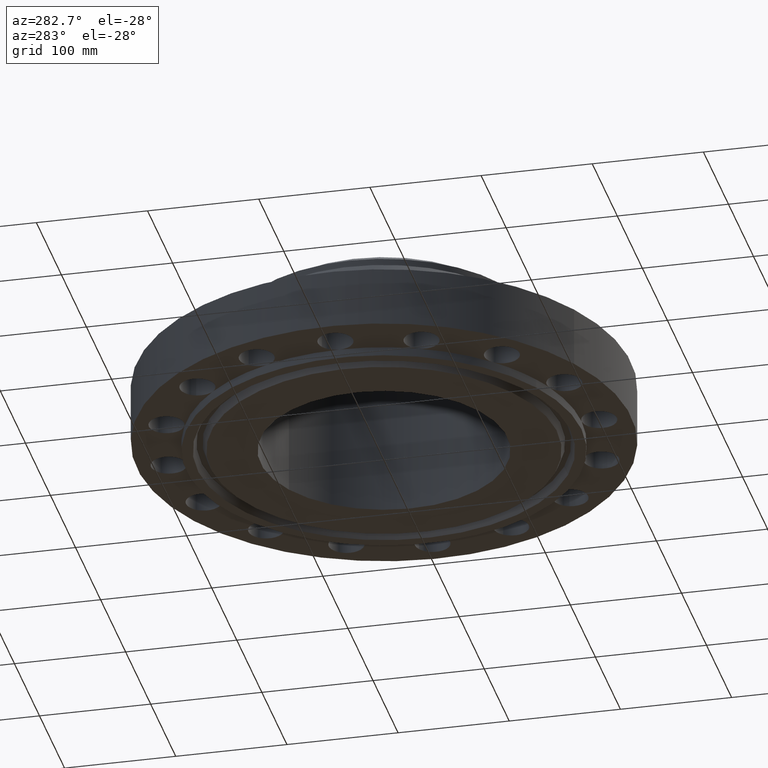
[diagram: clean part render]
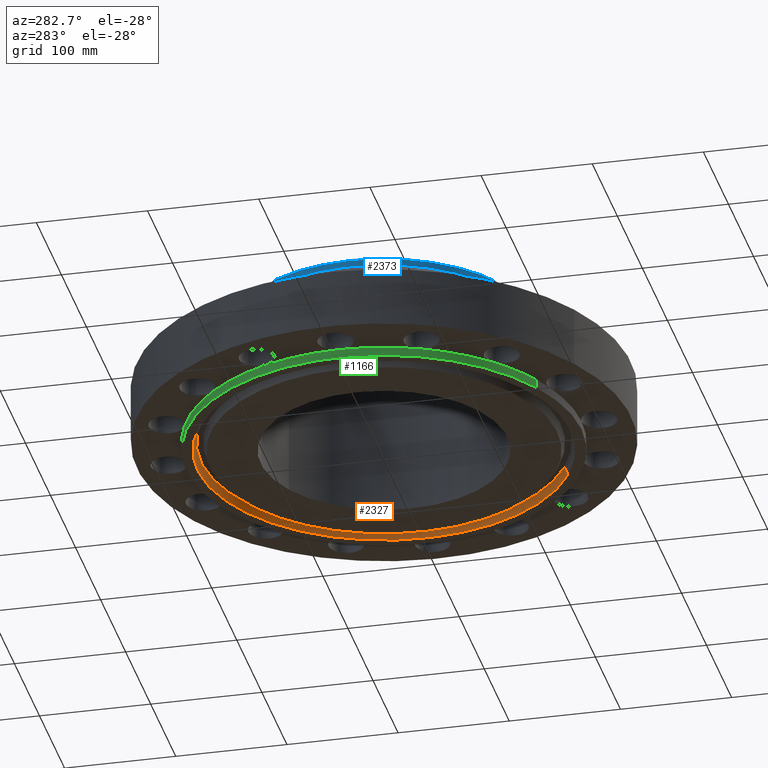
[diagram: same view with three faces highlighted in distinct colors, each labeled with its STEP entity id]
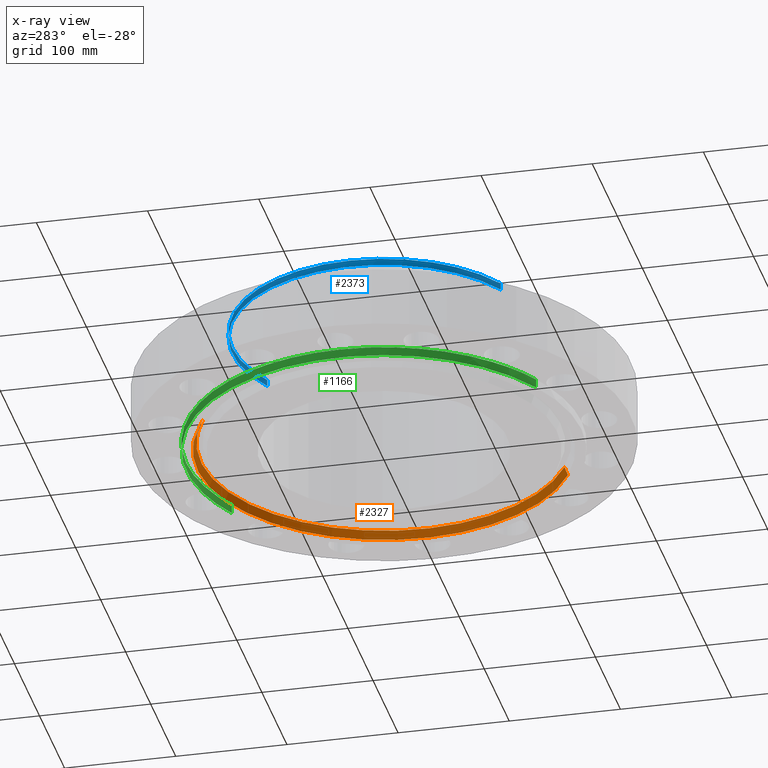
[diagram: x-ray of the same camera — body ghosted, the three highlighted faces saturated]
A machine part, auxiliary view with three faces highlighted in distinct colors.
The next image is the same camera in x-ray (body ghosted, the three faces saturated) — at least one of them is partly hidden behind the body in this view.
Their STEP definitions:

[orange] entity #2327 — the highlighted conical surface has half-angle 23 deg.
#2017=AXIS2_PLACEMENT_3D('Circle Axis2P3D',#2015,#2016,$) ;
#2314=AXIS2_PLACEMENT_3D('Cone Axis2P3D',#2311,#2312,#2313) ;
#2318=AXIS2_PLACEMENT_3D('Circle Axis2P3D',#2316,#2317,$) ;
#2010=CARTESIAN_POINT('Vertex',(3.1687630974,-5.80038194286,-0.313000000001)) ;
#2012=CARTESIAN_POINT('Vertex',(-3.1687630974,5.80038194283,-0.313000000001)) ;
#2015=CARTESIAN_POINT('Axis2P3D Location',(-1.28118688012E-011,-2.36649894781E-011,-0.313000000001)) ;
#2278=CARTESIAN_POINT('Line Origine',(-3.13883653562,5.74560173891,-0.165943667508)) ;
#2282=CARTESIAN_POINT('Vertex',(-3.10890997383,5.69082153499,-0.0188873350136)) ;
#2289=CARTESIAN_POINT('Vertex',(3.10890997382,-5.690821535,-0.0188873350143)) ;
#2292=CARTESIAN_POINT('Line Origine',(3.13883653562,-5.74560173891,-0.165943667508)) ;
#2311=CARTESIAN_POINT('Axis2P3D Location',(0.,0.,-0.0188873350169)) ;
#2316=CARTESIAN_POINT('Axis2P3D Location',(0.,0.,-0.0188873350169)) ;
#2016=DIRECTION('Axis2P3D Direction',(0.,0.,-0.0393700787402)) ;
#2279=DIRECTION('Vector Direction',(-0.00737505833566,0.0134999537303,-0.0362403485611)) ;
#2293=DIRECTION('Vector Direction',(0.00737505833566,-0.0134999537303,-0.0362403485611)) ;
#2312=DIRECTION('Axis2P3D Direction',(-0.,-0.,-0.0393700787402)) ;
#2313=DIRECTION('Axis2P3D XDirection',(-0.0188750212049,0.0345504945626,0.)) ;
#2317=DIRECTION('Axis2P3D Direction',(-0.,0.,-0.0393700787402)) ;
#2280=VECTOR('Line Direction',#2279,0.0393700787402) ;
#2294=VECTOR('Line Direction',#2293,0.0393700787402) ;
#2322=ORIENTED_EDGE('',*,*,#2019,.T.) ;
#2323=ORIENTED_EDGE('',*,*,#2296,.T.) ;
#2324=ORIENTED_EDGE('',*,*,#2320,.T.) ;
#2325=ORIENTED_EDGE('',*,*,#2284,.F.) ;
#2327=ADVANCED_FACE('PartBody',(#2326),#2315,.F.) ;
#2018=CIRCLE('generated circle',#2017,6.60950000003) ;
#2319=CIRCLE('generated circle',#2318,6.48465658061) ;
#2315=CONICAL_SURFACE('Cone',#2314,6.48465658061,0.401425727959) ;
#2019=EDGE_CURVE('',#2013,#2011,#2018,.T.) ;
#2284=EDGE_CURVE('',#2013,#2283,#2281,.F.) ;
#2296=EDGE_CURVE('',#2011,#2290,#2295,.F.) ;
#2320=EDGE_CURVE('',#2290,#2283,#2319,.F.) ;
#2321=EDGE_LOOP('',(#2322,#2323,#2324,#2325)) ;
#2326=FACE_OUTER_BOUND('',#2321,.T.) ;
#2281=LINE('Line',#2278,#2280) ;
#2295=LINE('Line',#2292,#2294) ;
#2011=VERTEX_POINT('',#2010) ;
#2013=VERTEX_POINT('',#2012) ;
#2283=VERTEX_POINT('',#2282) ;
#2290=VERTEX_POINT('',#2289) ;

[blue] entity #2373 — the highlighted cylindrical surface (partial cylindrical patch) has radius 136.525 mm, axis along (-0, 0, -1).
#2046=AXIS2_PLACEMENT_3D('Circle Axis2P3D',#2044,#2045,$) ;
#2338=AXIS2_PLACEMENT_3D('Cylinder Axis2P3D',#2335,#2336,#2337) ;
#2356=AXIS2_PLACEMENT_3D('Circle Axis2P3D',#2354,#2355,$) ;
#2363=AXIS2_PLACEMENT_3D('Circle Axis2P3D',#2361,#2362,$) ;
#2041=CARTESIAN_POINT('Vertex',(-2.57691227001,-4.71700627018,4.08578537513)) ;
#2044=CARTESIAN_POINT('Axis2P3D Location',(0.,0.,4.08578537513)) ;
#2048=CARTESIAN_POINT('Vertex',(2.57691227001,4.71700627018,4.08578537513)) ;
#2335=CARTESIAN_POINT('Axis2P3D Location',(0.,0.,2.28350000001)) ;
#2340=CARTESIAN_POINT('Line Origine',(2.57691227001,4.71700627018,4.20389561136)) ;
#2344=CARTESIAN_POINT('Vertex',(2.57691227001,4.71700627018,4.32200584758)) ;
#2347=CARTESIAN_POINT('Line Origine',(-2.57691227001,-4.71700627018,4.20389561136)) ;
#2351=CARTESIAN_POINT('Vertex',(-2.57691227001,-4.71700627018,4.32200584758)) ;
#2354=CARTESIAN_POINT('Axis2P3D Location',(0.,0.,4.32200584758)) ;
#2358=CARTESIAN_POINT('Vertex',(-2.57691227001,4.71700627018,4.32200584758)) ;
#2361=CARTESIAN_POINT('Axis2P3D Location',(0.,0.,4.32200584758)) ;
#2045=DIRECTION('Axis2P3D Direction',(-0.,0.,-0.0393700787402)) ;
#2336=DIRECTION('Axis2P3D Direction',(-0.,0.,-0.0393700787402)) ;
#2337=DIRECTION('Axis2P3D XDirection',(-0.0188750212049,-0.0345504945626,0.)) ;
#2341=DIRECTION('Vector Direction',(0.,0.,-0.0393700787402)) ;
#2348=DIRECTION('Vector Direction',(0.,0.,-0.0393700787402)) ;
#2355=DIRECTION('Axis2P3D Direction',(-0.,0.,-0.0393700787402)) ;
#2362=DIRECTION('Axis2P3D Direction',(-0.,0.,-0.0393700787402)) ;
#2342=VECTOR('Line Direction',#2341,0.0393700787402) ;
#2349=VECTOR('Line Direction',#2348,0.0393700787402) ;
#2367=ORIENTED_EDGE('',*,*,#2346,.F.) ;
#2368=ORIENTED_EDGE('',*,*,#2050,.F.) ;
#2369=ORIENTED_EDGE('',*,*,#2353,.T.) ;
#2370=ORIENTED_EDGE('',*,*,#2360,.F.) ;
#2371=ORIENTED_EDGE('',*,*,#2365,.T.) ;
#2373=ADVANCED_FACE('PartBody',(#2372),#2339,.T.) ;
#2047=CIRCLE('generated circle',#2046,5.37500000002) ;
#2357=CIRCLE('generated circle',#2356,5.37500000002) ;
#2364=CIRCLE('generated circle',#2363,5.37500000002) ;
#2339=CYLINDRICAL_SURFACE('generated cylinder',#2338,5.37500000002) ;
#2050=EDGE_CURVE('',#2042,#2049,#2047,.T.) ;
#2346=EDGE_CURVE('',#2049,#2345,#2343,.F.) ;
#2353=EDGE_CURVE('',#2042,#2352,#2350,.F.) ;
#2360=EDGE_CURVE('',#2359,#2352,#2357,.F.) ;
#2365=EDGE_CURVE('',#2359,#2345,#2364,.T.) ;
#2366=EDGE_LOOP('',(#2367,#2368,#2369,#2370,#2371)) ;
#2372=FACE_OUTER_BOUND('',#2366,.T.) ;
#2343=LINE('Line',#2340,#2342) ;
#2350=LINE('Line',#2347,#2349) ;
#2042=VERTEX_POINT('',#2041) ;
#2049=VERTEX_POINT('',#2048) ;
#2345=VERTEX_POINT('',#2344) ;
#2352=VERTEX_POINT('',#2351) ;
#2359=VERTEX_POINT('',#2358) ;

[green] entity #1166 — the highlighted cylindrical surface (partial cylindrical patch) has radius 177.8 mm, axis along (0, 0, -1).
#191=AXIS2_PLACEMENT_3D('Circle Axis2P3D',#189,#190,$) ;
#217=AXIS2_PLACEMENT_3D('Circle Axis2P3D',#215,#216,$) ;
#222=AXIS2_PLACEMENT_3D('Circle Axis2P3D',#220,#221,$) ;
#248=AXIS2_PLACEMENT_3D('Circle Axis2P3D',#246,#247,$) ;
#274=AXIS2_PLACEMENT_3D('Circle Axis2P3D',#272,#273,$) ;
#300=AXIS2_PLACEMENT_3D('Circle Axis2P3D',#298,#299,$) ;
#326=AXIS2_PLACEMENT_3D('Circle Axis2P3D',#324,#325,$) ;
#352=AXIS2_PLACEMENT_3D('Circle Axis2P3D',#350,#351,$) ;
#378=AXIS2_PLACEMENT_3D('Circle Axis2P3D',#376,#377,$) ;
#1133=AXIS2_PLACEMENT_3D('Cylinder Axis2P3D',#1130,#1131,#1132) ;
#92=CARTESIAN_POINT('Vertex',(-1.71542746534E-016,7.00000000003,0.)) ;
#186=CARTESIAN_POINT('Vertex',(3.35597877024,6.14307793326,-3.14177380524E-012)) ;
#189=CARTESIAN_POINT('Axis2P3D Location',(-3.58732997813E-009,-7.85138197676E-009,0.)) ;
#193=CARTESIAN_POINT('Vertex',(2.67878402657,6.4671567276,-3.14177380524E-012)) ;
#215=CARTESIAN_POINT('Axis2P3D Location',(2.34735205901E-010,1.32776491464E-009,0.)) ;
#220=CARTESIAN_POINT('Axis2P3D Location',(-2.34733947066E-010,1.32775820085E-009,0.)) ;
#224=CARTESIAN_POINT('Vertex',(-2.67878402657,6.4671567276,-3.14177380524E-012)) ;
#246=CARTESIAN_POINT('Axis2P3D Location',(-1.09747130019E-009,1.71139644888E-009,0.)) ;
#250=CARTESIAN_POINT('Vertex',(-4.94974746833,4.94974746833,-3.14177380524E-012)) ;
#272=CARTESIAN_POINT('Axis2P3D Location',(-1.71072171302E-009,1.09813540588E-009,0.)) ;
#276=CARTESIAN_POINT('Vertex',(-6.4671567276,2.67878402657,-3.14177380524E-012)) ;
#298=CARTESIAN_POINT('Axis2P3D Location',(-1.32709689257E-009,2.3540336784E-010,0.)) ;
#302=CARTESIAN_POINT('Vertex',(-7.00000000003,-2.23792987641E-014,-3.14177380524E-012)) ;
#324=CARTESIAN_POINT('Axis2P3D Location',(-1.32709017878E-009,-2.34066204739E-010,0.)) ;
#328=CARTESIAN_POINT('Vertex',(-6.4671567276,-2.67878402657,-3.14177380524E-012)) ;
#350=CARTESIAN_POINT('Axis2P3D Location',(-1.71072842681E-009,-1.0968038376E-009,0.)) ;
#354=CARTESIAN_POINT('Vertex',(-4.94974746831,-4.94974746831,0.)) ;
#376=CARTESIAN_POINT('Axis2P3D Location',(-5.2014301877E-010,-8.77468806277E-010,0.)) ;
#380=CARTESIAN_POINT('Vertex',(-3.35597877025,-6.14307793326,-3.14177380524E-012)) ;
#1093=CARTESIAN_POINT('Vertex',(3.35597877025,6.14307793326,-0.313000000034)) ;
#1095=CARTESIAN_POINT('Vertex',(-3.35597877024,-6.14307793325,-0.313000000001)) ;
#1098=CARTESIAN_POINT('Line Origine',(3.35597877025,6.14307793326,-0.156500000018)) ;
#1103=CARTESIAN_POINT('Line Origine',(-3.35597877025,-6.14307793326,-0.156500000018)) ;
#1130=CARTESIAN_POINT('Axis2P3D Location',(0.,0.,2.28350000001)) ;
#1136=CARTESIAN_POINT('Control Point',(-3.35597877025,-6.14307793326,-0.313000000001)) ;
#1137=CARTESIAN_POINT('Control Point',(-4.32093119552,-5.61592202075,-0.313000000003)) ;
#1138=CARTESIAN_POINT('Control Point',(-5.18237679942,-4.89929814259,-0.313000000004)) ;
#1139=CARTESIAN_POINT('Control Point',(-5.89054518539,-4.02015285781,-0.313000000006)) ;
#1140=CARTESIAN_POINT('Control Point',(-6.92401186854,-2.03156042604,-0.313000000009)) ;
#1141=CARTESIAN_POINT('Control Point',(-7.12882071722,0.200166837853,-0.313000000012)) ;
#1142=CARTESIAN_POINT('Control Point',(-7.00792179263,1.32256709831,-0.313000000014)) ;
#1143=CARTESIAN_POINT('Control Point',(-6.3325458989,3.45948559162,-0.313000000017)) ;
#1144=CARTESIAN_POINT('Control Point',(-4.89929814259,5.18237679942,-0.313000000021)) ;
#1145=CARTESIAN_POINT('Control Point',(-4.02015285781,5.89054518539,-0.313000000022)) ;
#1146=CARTESIAN_POINT('Control Point',(-2.03156042604,6.92401186854,-0.313000000026)) ;
#1147=CARTESIAN_POINT('Control Point',(0.200166837849,7.12882071722,-0.313000000029)) ;
#1148=CARTESIAN_POINT('Control Point',(1.32256709831,7.00792179263,-0.31300000003)) ;
#1149=CARTESIAN_POINT('Control Point',(2.39102634496,6.67023384577,-0.313000000032)) ;
#1150=CARTESIAN_POINT('Control Point',(3.35597877024,6.14307793326,-0.313000000034)) ;
#190=DIRECTION('Axis2P3D Direction',(0.,0.,-0.0393700787402)) ;
#216=DIRECTION('Axis2P3D Direction',(0.,0.,-0.0393700787402)) ;
#221=DIRECTION('Axis2P3D Direction',(0.,0.,-0.0393700787402)) ;
#247=DIRECTION('Axis2P3D Direction',(0.,0.,-0.0393700787402)) ;
#273=DIRECTION('Axis2P3D Direction',(0.,0.,-0.0393700787402)) ;
#299=DIRECTION('Axis2P3D Direction',(0.,0.,-0.0393700787402)) ;
#325=DIRECTION('Axis2P3D Direction',(0.,0.,-0.0393700787402)) ;
#351=DIRECTION('Axis2P3D Direction',(0.,0.,-0.0393700787402)) ;
#377=DIRECTION('Axis2P3D Direction',(0.,0.,-0.0393700787402)) ;
#1099=DIRECTION('Vector Direction',(0.,0.,-0.0393700787402)) ;
#1104=DIRECTION('Vector Direction',(0.,0.,-0.0393700787402)) ;
#1131=DIRECTION('Axis2P3D Direction',(0.,0.,-0.0393700787402)) ;
#1132=DIRECTION('Axis2P3D XDirection',(-0.0188750212049,-0.0345504945626,0.)) ;
#1100=VECTOR('Line Direction',#1099,0.0393700787402) ;
#1105=VECTOR('Line Direction',#1104,0.0393700787402) ;
#1153=ORIENTED_EDGE('',*,*,#1151,.F.) ;
#1154=ORIENTED_EDGE('',*,*,#1107,.T.) ;
#1155=ORIENTED_EDGE('',*,*,#382,.T.) ;
#1156=ORIENTED_EDGE('',*,*,#356,.T.) ;
#1157=ORIENTED_EDGE('',*,*,#330,.T.) ;
#1158=ORIENTED_EDGE('',*,*,#304,.T.) ;
#1159=ORIENTED_EDGE('',*,*,#278,.T.) ;
#1160=ORIENTED_EDGE('',*,*,#252,.T.) ;
#1161=ORIENTED_EDGE('',*,*,#226,.T.) ;
#1162=ORIENTED_EDGE('',*,*,#219,.T.) ;
#1163=ORIENTED_EDGE('',*,*,#195,.T.) ;
#1164=ORIENTED_EDGE('',*,*,#1102,.F.) ;
#1166=ADVANCED_FACE('PartBody',(#1165),#1134,.T.) ;
#1135=B_SPLINE_CURVE_WITH_KNOTS('',5,(#1136,#1137,#1138,#1139,#1140,#1141,#1142,#1143,#1144,#1145,#1146,#1147,#1148,#1149,#1150),.UNSPECIFIED.,.F.,.U.,(6,3,3,3,6),(-279.287586905,-139.643793453,2.84217094304E-014,139.643793453,279.287586905),.UNSPECIFIED.) ;
#192=CIRCLE('generated circle',#191,7.00000000865) ;
#218=CIRCLE('generated circle',#217,6.9999999987) ;
#223=CIRCLE('generated circle',#222,6.9999999987) ;
#249=CIRCLE('generated circle',#248,6.99999999802) ;
#275=CIRCLE('generated circle',#274,6.99999999802) ;
#301=CIRCLE('generated circle',#300,6.9999999987) ;
#327=CIRCLE('generated circle',#326,6.9999999987) ;
#353=CIRCLE('generated circle',#352,6.99999999802) ;
#379=CIRCLE('generated circle',#378,6.99999999901) ;
#1134=CYLINDRICAL_SURFACE('generated cylinder',#1133,7.00000000003) ;
#195=EDGE_CURVE('',#194,#187,#192,.T.) ;
#219=EDGE_CURVE('',#93,#194,#218,.T.) ;
#226=EDGE_CURVE('',#225,#93,#223,.T.) ;
#252=EDGE_CURVE('',#251,#225,#249,.T.) ;
#278=EDGE_CURVE('',#277,#251,#275,.T.) ;
#304=EDGE_CURVE('',#303,#277,#301,.T.) ;
#330=EDGE_CURVE('',#329,#303,#327,.T.) ;
#356=EDGE_CURVE('',#355,#329,#353,.T.) ;
#382=EDGE_CURVE('',#381,#355,#379,.T.) ;
#1102=EDGE_CURVE('',#1094,#187,#1101,.F.) ;
#1107=EDGE_CURVE('',#1096,#381,#1106,.F.) ;
#1151=EDGE_CURVE('',#1096,#1094,#1135,.T.) ;
#1152=EDGE_LOOP('',(#1153,#1154,#1155,#1156,#1157,#1158,#1159,#1160,#1161,#1162,#1163,#1164)) ;
#1165=FACE_OUTER_BOUND('',#1152,.T.) ;
#1101=LINE('Line',#1098,#1100) ;
#1106=LINE('Line',#1103,#1105) ;
#93=VERTEX_POINT('',#92) ;
#187=VERTEX_POINT('',#186) ;
#194=VERTEX_POINT('',#193) ;
#225=VERTEX_POINT('',#224) ;
#251=VERTEX_POINT('',#250) ;
#277=VERTEX_POINT('',#276) ;
#303=VERTEX_POINT('',#302) ;
#329=VERTEX_POINT('',#328) ;
#355=VERTEX_POINT('',#354) ;
#381=VERTEX_POINT('',#380) ;
#1094=VERTEX_POINT('',#1093) ;
#1096=VERTEX_POINT('',#1095) ;